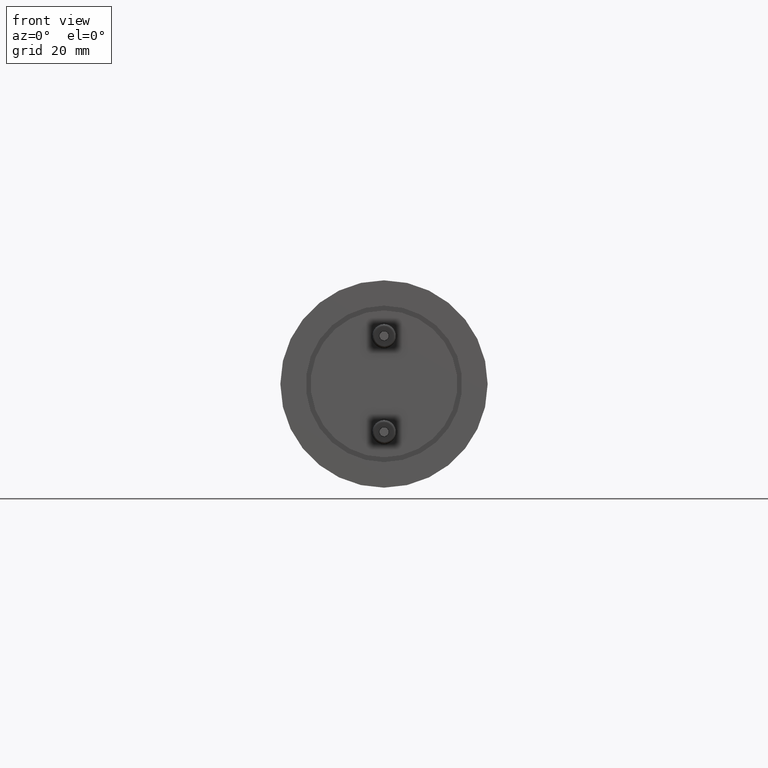
[diagram: clean part render]
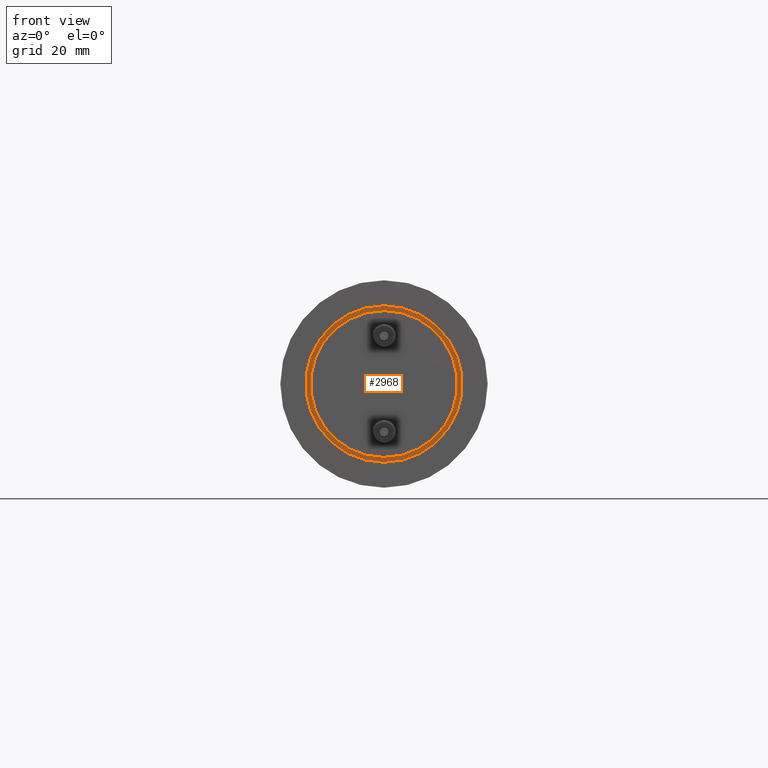
[diagram: same view with one face highlighted and labeled with its STEP entity id]
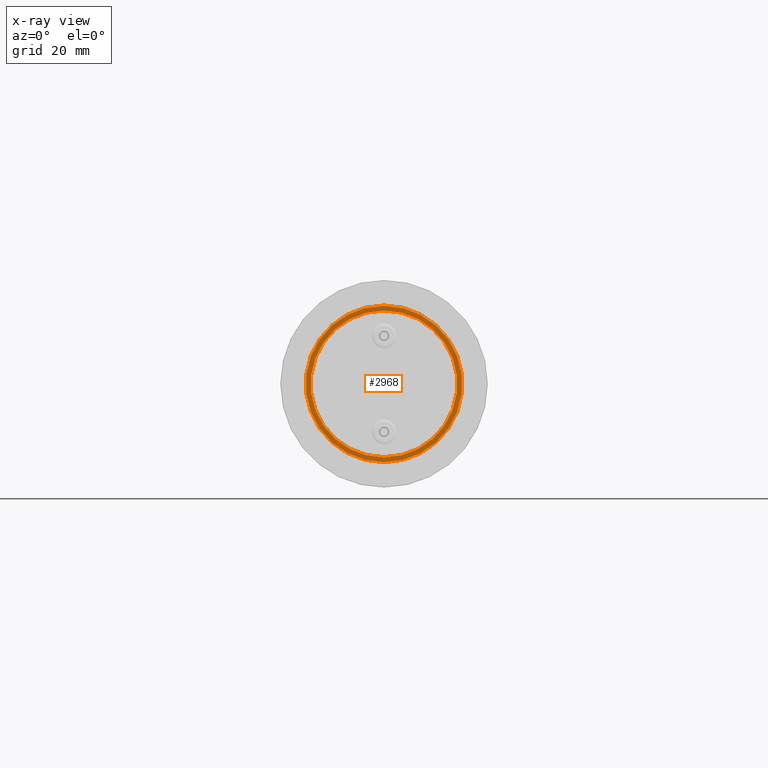
[diagram: x-ray of the same camera — body ghosted, the highlighted face saturated]
A machine part, front view. The second image highlights one B-rep face of the part: STEP entity #2968.
The next image is the same camera in x-ray: the body ghosted, the highlighted face saturated — about 0% of this face is hidden behind the body in this view.
In plain terms, the highlighted planar face has unit normal (0, -1, 0).
Its self-contained STEP definition (entity closure, byte-faithful):
#10 = CARTESIAN_POINT ( 'NONE',  ( 0.0000000000000000000, -0.7727120255272258400, 0.7650000000000000100 ) ) ;
#230 = CARTESIAN_POINT ( 'NONE',  ( 9.368548013477252200E-017, -0.7727120255272258400, -0.7650000000000000100 ) ) ;
#570 = EDGE_LOOP ( 'NONE', ( #2248, #2268 ) ) ;
#586 = VERTEX_POINT ( 'NONE', #10 ) ;
#616 = VERTEX_POINT ( 'NONE', #230 ) ;
#781 = DIRECTION ( 'NONE',  ( 0.0000000000000000000, 0.0000000000000000000, 1.000000000000000000 ) ) ;
#782 = DIRECTION ( 'NONE',  ( -0.0000000000000000000, 1.000000000000000000, -0.0000000000000000000 ) ) ;
#1212 = AXIS2_PLACEMENT_3D ( 'NONE', #3272, #3271, #3270 ) ;
#1214 = AXIS2_PLACEMENT_3D ( 'NONE', #3569, #782, #781 ) ;
#1261 = AXIS2_PLACEMENT_3D ( 'NONE', #1614, #1600, #1593 ) ;
#1386 = CIRCLE ( 'NONE', #2614, 0.8149999999999997200 ) ;
#1387 = CIRCLE ( 'NONE', #2616, 0.7650000000000000100 ) ;
#1494 = FACE_OUTER_BOUND ( 'NONE', #570, .T. ) ;
#1593 = DIRECTION ( 'NONE',  ( 0.0000000000000000000, -0.0000000000000000000, -1.000000000000000000 ) ) ;
#1600 = DIRECTION ( 'NONE',  ( 0.0000000000000000000, -1.000000000000000000, 0.0000000000000000000 ) ) ;
#1603 = PLANE ( 'NONE',  #1261 ) ;
#1614 = CARTESIAN_POINT ( 'NONE',  ( -0.8149999999999997200, -0.7727120255272258400, 0.0000000000000000000 ) ) ;
#1709 = FACE_BOUND ( 'NONE', #1933, .T. ) ;
#1751 = EDGE_CURVE ( 'NONE', #1815, #1853, #3043, .T. ) ;
#1756 = EDGE_CURVE ( 'NONE', #586, #616, #3095, .T. ) ;
#1815 = VERTEX_POINT ( 'NONE', #2776 ) ;
#1853 = VERTEX_POINT ( 'NONE', #2747 ) ;
#1933 = EDGE_LOOP ( 'NONE', ( #2144, #2149 ) ) ;
#2144 = ORIENTED_EDGE ( 'NONE', *, *, #1756, .T. ) ;
#2149 = ORIENTED_EDGE ( 'NONE', *, *, #3060, .T. ) ;
#2248 = ORIENTED_EDGE ( 'NONE', *, *, #3061, .F. ) ;
#2268 = ORIENTED_EDGE ( 'NONE', *, *, #1751, .F. ) ;
#2614 = AXIS2_PLACEMENT_3D ( 'NONE', #3303, #3304, #3305 ) ;
#2616 = AXIS2_PLACEMENT_3D ( 'NONE', #3300, #3301, #3302 ) ;
#2747 = CARTESIAN_POINT ( 'NONE',  ( 0.0000000000000000000, -0.7727120255272258400, 0.8149999999999997200 ) ) ;
#2776 = CARTESIAN_POINT ( 'NONE',  ( 9.980871413050926300E-017, -0.7727120255272258400, -0.8149999999999997200 ) ) ;
#2968 = ADVANCED_FACE ( 'NONE', ( #1709, #1494 ), #1603, .T. ) ;
#3043 = CIRCLE ( 'NONE', #1214, 0.8149999999999997200 ) ;
#3060 = EDGE_CURVE ( 'NONE', #616, #586, #1387, .T. ) ;
#3061 = EDGE_CURVE ( 'NONE', #1853, #1815, #1386, .T. ) ;
#3095 = CIRCLE ( 'NONE', #1212, 0.7650000000000000100 ) ;
#3270 = DIRECTION ( 'NONE',  ( 0.0000000000000000000, 0.0000000000000000000, 1.000000000000000000 ) ) ;
#3271 = DIRECTION ( 'NONE',  ( -0.0000000000000000000, 1.000000000000000000, -0.0000000000000000000 ) ) ;
#3272 = CARTESIAN_POINT ( 'NONE',  ( 0.0000000000000000000, -0.7727120255272258400, 0.0000000000000000000 ) ) ;
#3300 = CARTESIAN_POINT ( 'NONE',  ( 0.0000000000000000000, -0.7727120255272258400, 0.0000000000000000000 ) ) ;
#3301 = DIRECTION ( 'NONE',  ( -0.0000000000000000000, 1.000000000000000000, -0.0000000000000000000 ) ) ;
#3302 = DIRECTION ( 'NONE',  ( 0.0000000000000000000, 0.0000000000000000000, 1.000000000000000000 ) ) ;
#3303 = CARTESIAN_POINT ( 'NONE',  ( 0.0000000000000000000, -0.7727120255272258400, 0.0000000000000000000 ) ) ;
#3304 = DIRECTION ( 'NONE',  ( -0.0000000000000000000, 1.000000000000000000, -0.0000000000000000000 ) ) ;
#3305 = DIRECTION ( 'NONE',  ( 0.0000000000000000000, 0.0000000000000000000, 1.000000000000000000 ) ) ;
#3569 = CARTESIAN_POINT ( 'NONE',  ( 0.0000000000000000000, -0.7727120255272258400, 0.0000000000000000000 ) ) ;